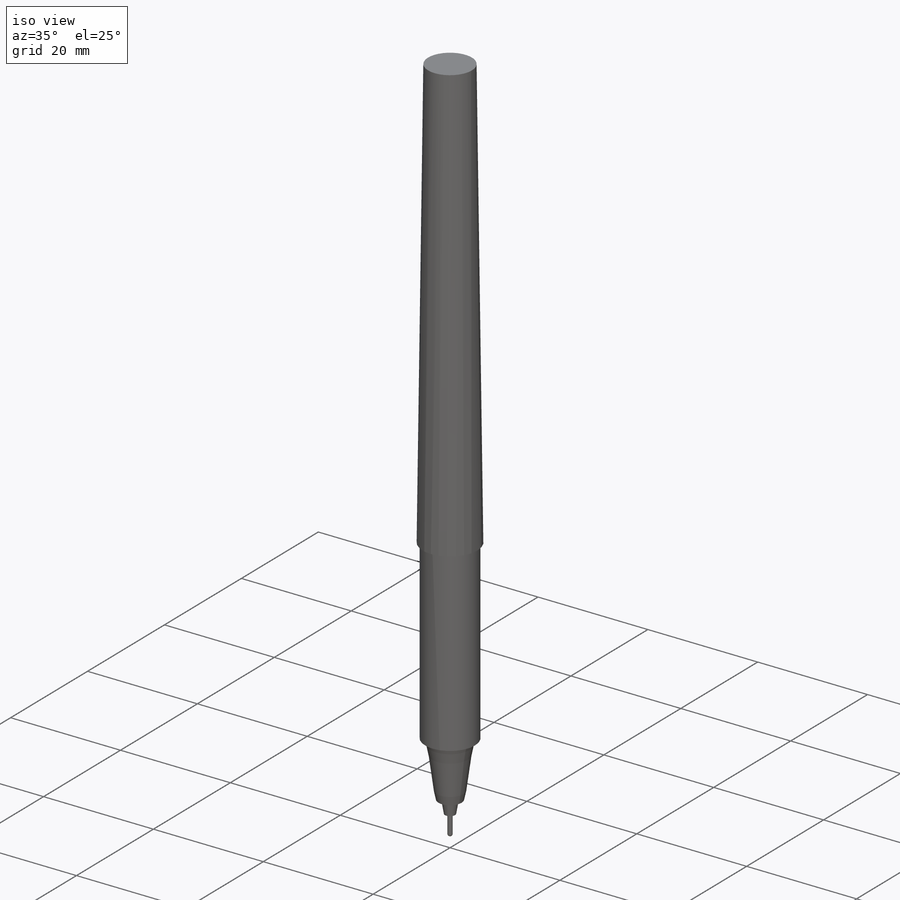
[diagram: iso view]
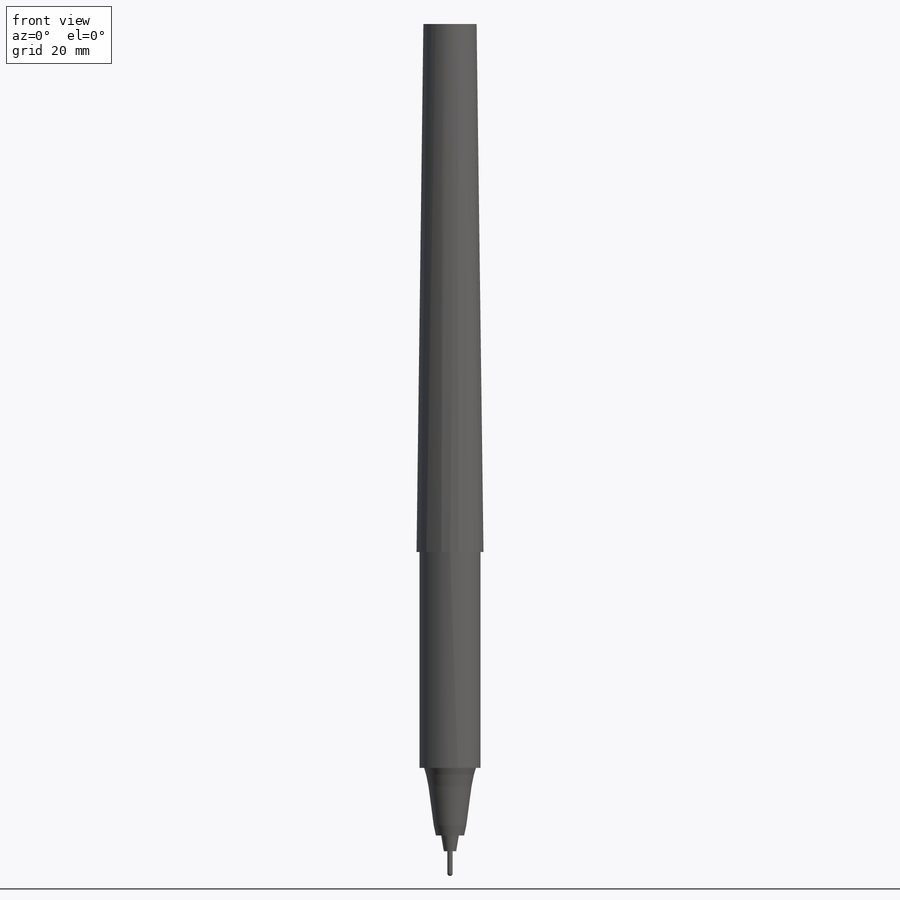
[diagram: front view]
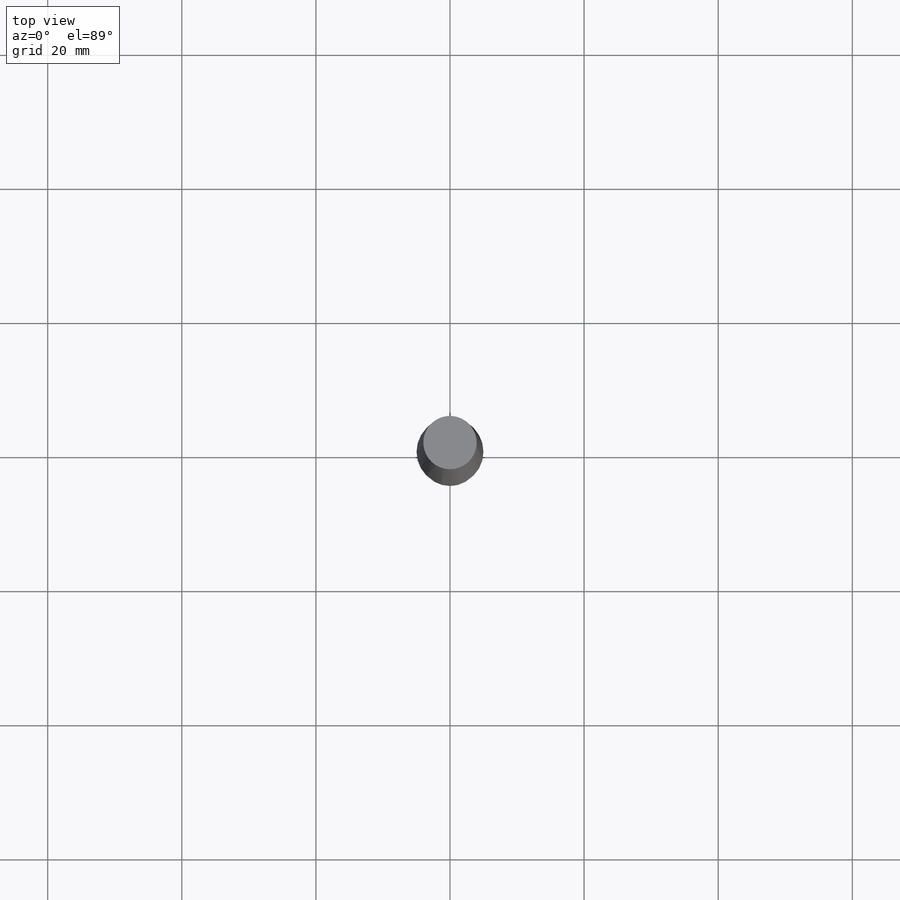
[diagram: top view]
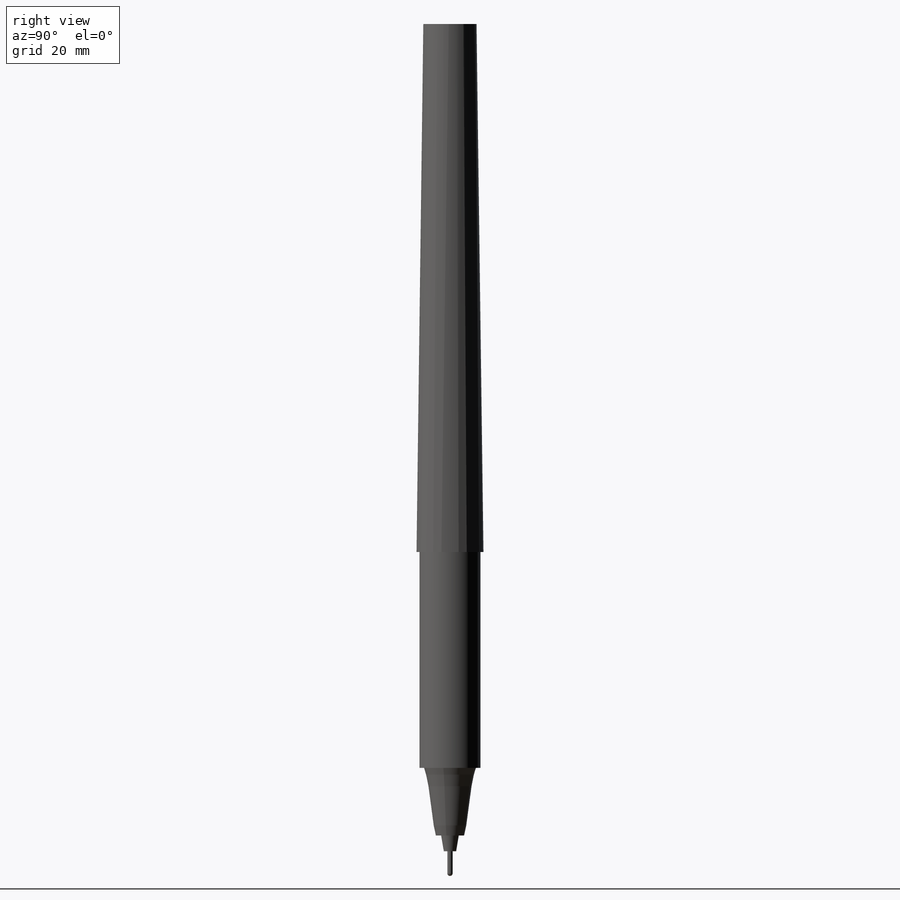
[diagram: right view]
SOLIDWORKS PART (.sldprt)
format: sldprt  version: not decoded by parser v0  size: 172,544 bytes
history: native  units: mm
features: sketch x8, revolve x3, material x1, extrude x1 (+11 scaffold rows collapsed)
feature tree (24):
  scaffold x11  (default folders/planes/origin — collapsed)
  material  "Material <not specified>"
  sketch  "Sketch1"  dims[D1=9.9822mm]
  sketch  "3DSketch1"  dims[D1=78.74mm]
  sketch  "Sketch8"
  sketch  "Sketch9"  dims[D1=~7.956498mm]
  sketch  "Sketch11"  dims[D1=9.0932mm]
  extrude  "Boss-Extrude6"  Depth=32.1945mm
  sketch  "Sketch12"  dims[c1.D3=~6.352637mm c1.D4=~6.352637mm c1.D1=3.8608mm c1.D2=~2.10185mm c2.D3=10.0838mm]
  revolve  "Revolve1"  Angle=360deg
  sketch  "Sketch13"  dims[D1=~1.31445mm D2=~0.92075mm D3=2.3495mm]
  revolve  "Revolve2"  Angle=360deg
  sketch  "Sketch14"  dims[D2=0.4064mm D1=~0.40005mm D3=3.683mm]
  revolve  "Revolve3"  Angle=360deg
decode coverage: 11 of 12 modeling features carry decoded parameters
note: ~ marks probable driven/reference dimensions
note: suppression state not decoded; provenance and decode notes live in map.json
